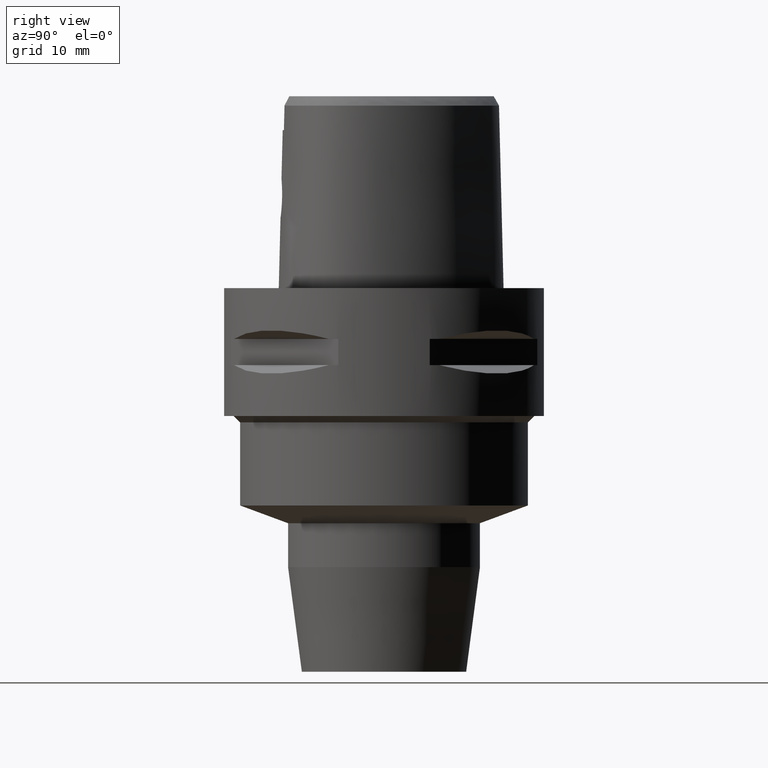
[diagram: clean part render]
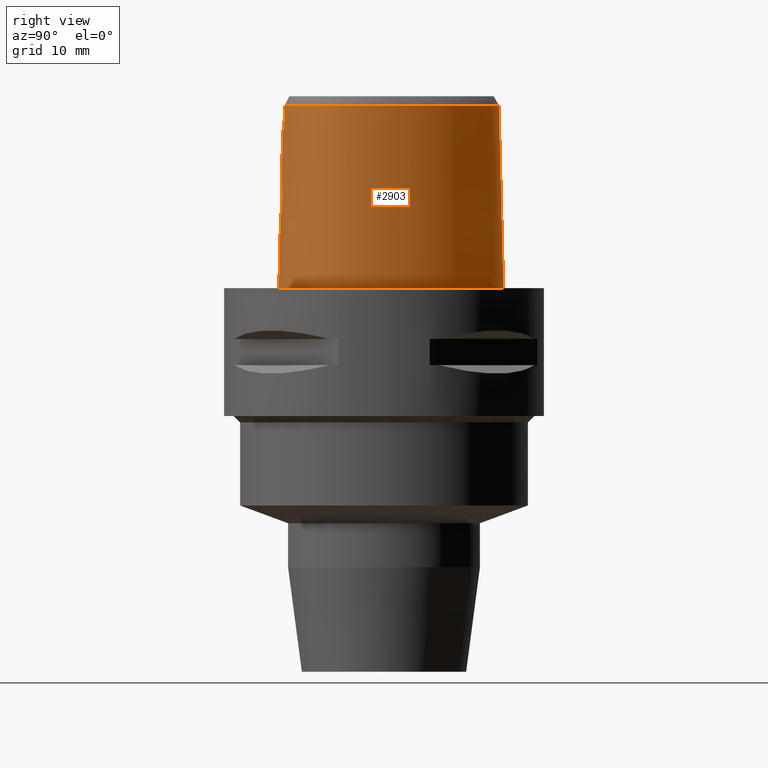
[diagram: same view with one face highlighted and labeled with its STEP entity id]
A machine part, right view. The second image highlights one B-rep face of the part: STEP entity #2903.
In plain terms, the highlighted face is a freeform B-spline surface patch.
Its self-contained STEP definition (entity closure, byte-faithful):
#130=CARTESIAN_POINT('',(3.168920890823E0,-1.555911073834E1,2.852071374673E1));
#140=CARTESIAN_POINT('',(-2.785047616194E-11,1.798202997910E1,
2.852071728569E1));
#141=CARTESIAN_POINT('',(2.938165127418E-1,1.798202997910E1,2.852071728569E1));
#142=CARTESIAN_POINT('',(8.804458130293E-1,1.795405330957E1,2.852060428472E1));
#143=CARTESIAN_POINT('',(1.831871468908E0,1.781472363942E1,2.852076493840E1));
#144=CARTESIAN_POINT('',(2.817086184386E0,1.757052614119E1,2.852071641668E1));
#145=CARTESIAN_POINT('',(3.847084431822E0,1.721075742549E1,2.852071665371E1));
#146=CARTESIAN_POINT('',(4.910783279314E0,1.672779719123E1,2.852072341258E1));
#147=CARTESIAN_POINT('',(5.986692590227E0,1.612449099150E1,2.852071572433E1));
#148=CARTESIAN_POINT('',(7.047068233906E0,1.541641131498E1,2.852072698246E1));
#149=CARTESIAN_POINT('',(8.110971385773E0,1.458914485717E1,2.852071912210E1));
#150=CARTESIAN_POINT('',(9.192999848597E0,1.362198297783E1,2.852071946810E1));
#151=CARTESIAN_POINT('',(1.034269201733E1,1.244304711909E1,2.852070842262E1));
#152=CARTESIAN_POINT('',(1.153704874450E1,1.102665121320E1,2.852071905381E1));
#153=CARTESIAN_POINT('',(1.271265117317E1,9.401004413258E0,2.852072762209E1));
#154=CARTESIAN_POINT('',(1.380154184962E1,7.628598012364E0,2.852068643211E1));
#155=CARTESIAN_POINT('',(1.474745196757E1,5.788295374651E0,2.852072741465E1));
#156=CARTESIAN_POINT('',(1.549983465724E1,4.010298593931E0,2.852070669004E1));
#157=CARTESIAN_POINT('',(1.606850953942E1,2.342579004074E0,2.852071993437E1));
#158=CARTESIAN_POINT('',(1.647577125132E1,8.018519579868E-1,2.852071506211E1));
#159=CARTESIAN_POINT('',(1.674682078325E1,-6.134299517335E-1,2.852071642236E1));
#160=CARTESIAN_POINT('',(1.690560867773E1,-1.937791433471E0,2.852072268517E1));
#161=CARTESIAN_POINT('',(1.696366750899E1,-3.211555099408E0,2.852071506623E1));
#162=CARTESIAN_POINT('',(1.692098381929E1,-4.431797834231E0,2.852071642479E1));
#163=CARTESIAN_POINT('',(1.678231117131E1,-5.571043062912E0,2.852072531871E1));
#164=CARTESIAN_POINT('',(1.655498942838E1,-6.624192014902E0,2.852071647227E1));
#165=CARTESIAN_POINT('',(1.625360589613E1,-7.573268431237E0,2.852071029196E1));
#166=CARTESIAN_POINT('',(1.588447048002E1,-8.436807986137E0,2.852072610166E1));
#167=CARTESIAN_POINT('',(1.544936115215E1,-9.227234670856E0,2.852073137009E1));
#168=CARTESIAN_POINT('',(1.493212083505E1,-9.978283257004E0,2.852069070674E1));
#169=CARTESIAN_POINT('',(1.431469721374E1,-1.071267780742E1,2.852072417142E1));
#170=CARTESIAN_POINT('',(1.357395694205E1,-1.144065842057E1,2.852072165713E1));
#171=CARTESIAN_POINT('',(1.270344234195E1,-1.214953424946E1,2.852072065183E1));
#172=CARTESIAN_POINT('',(1.171291712324E1,-1.281871451477E1,2.852071565398E1));
#173=CARTESIAN_POINT('',(1.062983432112E1,-1.342632327702E1,2.852072279452E1));
#174=CARTESIAN_POINT('',(9.464170682796E0,-1.396948522821E1,2.852070934219E1));
#175=CARTESIAN_POINT('',(8.175232924831E0,-1.446288339580E1,2.852072589632E1));
#176=CARTESIAN_POINT('',(6.723862984294E0,-1.490598933493E1,2.852072127642E1));
#177=CARTESIAN_POINT('',(5.084039457933E0,-1.528534650842E1,2.852070436948E1));
#178=CARTESIAN_POINT('',(3.829916567733E0,-1.548206888888E1,2.852069800888E1));
#179=CARTESIAN_POINT('',(3.168920890823E0,-1.555911073834E1,2.852071374673E1));
#255=DIRECTION('',(-2.653059685059E-8,-2.499217453618E-2,-9.996876468237E-1));
#256=VECTOR('',#255,7.652390309446E0);
#257=CARTESIAN_POINT('',(2.030224829794E-7,-1.583752876601E1,2.470000006103E1));
#258=LINE('',#257,#256);
#276=CARTESIAN_POINT('',(-3.366053273828E-12,-1.618126839359E1,1.095E1));
#281=DIRECTION('',(-2.164302279448E-12,-2.499051295342E-2,-9.996876883619E-1));
#282=VECTOR('',#281,1.095342088082E1);
#283=CARTESIAN_POINT('',(-3.366053273828E-12,-1.618126839359E1,1.095E1));
#284=LINE('',#283,#282);
#304=CARTESIAN_POINT('',(-2.707256705393E-11,-1.645499999999E1,
2.310744188586E-13));
#305=CARTESIAN_POINT('',(7.106745490005E-1,-1.645499999999E1,
2.310744188586E-13));
#306=CARTESIAN_POINT('',(2.108849377151E0,-1.640239215618E1,
-1.072420110093E-13));
#307=CARTESIAN_POINT('',(4.163955374330E0,-1.617110290377E1,
2.873541024464E-14));
#308=CARTESIAN_POINT('',(6.094825595025E0,-1.580321794913E1,0.E0));
#309=CARTESIAN_POINT('',(7.866809803478E0,-1.532157371117E1,0.E0));
#310=CARTESIAN_POINT('',(9.457879809202E0,-1.475049288481E1,0.E0));
#311=CARTESIAN_POINT('',(1.086307133585E1,-1.411286201631E1,0.E0));
#312=CARTESIAN_POINT('',(1.208934444980E1,-1.342716602504E1,0.E0));
#313=CARTESIAN_POINT('',(1.314952564660E1,-1.270754380507E1,0.E0));
#314=CARTESIAN_POINT('',(1.405964846811E1,-1.196341927097E1,0.E0));
#315=CARTESIAN_POINT('',(1.483613065611E1,-1.119991491936E1,0.E0));
#316=CARTESIAN_POINT('',(1.549213915763E1,-1.042096391331E1,0.E0));
#317=CARTESIAN_POINT('',(1.604221000987E1,-9.625112537160E0,0.E0));
#318=CARTESIAN_POINT('',(1.650384441939E1,-8.793710103116E0,0.E0));
#319=CARTESIAN_POINT('',(1.689442157410E1,-7.896073542808E0,0.E0));
#320=CARTESIAN_POINT('',(1.721775633091E1,-6.905953226681E0,0.E0));
#321=CARTESIAN_POINT('',(1.746368549610E1,-5.818261369788E0,0.E0));
#322=CARTESIAN_POINT('',(1.762248797755E1,-4.619569040424E0,0.E0));
#323=CARTESIAN_POINT('',(1.767989225185E1,-3.299576513800E0,0.E0));
#324=CARTESIAN_POINT('',(1.761875839637E1,-1.850361029848E0,0.E0));
#325=CARTESIAN_POINT('',(1.741981888408E1,-2.700165798431E-1,0.E0));
#326=CARTESIAN_POINT('',(1.706395646763E1,1.434111718093E0,0.E0));
#327=CARTESIAN_POINT('',(1.653557586704E1,3.241804499436E0,0.E0));
#328=CARTESIAN_POINT('',(1.582731304619E1,5.117014124479E0,0.E0));
#329=CARTESIAN_POINT('',(1.494415320255E1,7.009231619320E0,0.E0));
#330=CARTESIAN_POINT('',(1.390660366753E1,8.857557017488E0,0.E0));
#331=CARTESIAN_POINT('',(1.274251250087E1,1.061027079172E1,0.E0));
#332=CARTESIAN_POINT('',(1.149159176304E1,1.221706231543E1,0.E0));
#333=CARTESIAN_POINT('',(1.019644322201E1,1.364173374838E1,0.E0));
#334=CARTESIAN_POINT('',(8.894616507015E0,1.486700811646E1,0.E0));
#335=CARTESIAN_POINT('',(7.614274625545E0,1.589229727788E1,0.E0));
#336=CARTESIAN_POINT('',(6.374577437526E0,1.672772900624E1,0.E0));
#337=CARTESIAN_POINT('',(5.185514901079E0,1.739010710959E1,0.E0));
#338=CARTESIAN_POINT('',(4.050586912588E0,1.789812409033E1,0.E0));
#339=CARTESIAN_POINT('',(2.968832156381E0,1.826981173086E1,0.E0));
#340=CARTESIAN_POINT('',(1.935870611948E0,1.852101755434E1,2.858354148453E-14));
#341=CARTESIAN_POINT('',(9.475906863755E-1,1.866452152494E1,
-1.066752290805E-13));
#342=CARTESIAN_POINT('',(3.116628054698E-1,1.869499999997E1,
2.298531735316E-13));
#343=CARTESIAN_POINT('',(9.828595188037E-11,1.869499999997E1,
2.298531735316E-13));
#348=CARTESIAN_POINT('',(9.828595188037E-11,1.869499999997E1,
2.298531735316E-13));
#387=CARTESIAN_POINT('',(-2.707256705393E-11,-1.645499999999E1,
2.310744188586E-13));
#978=CARTESIAN_POINT('',(-3.366053273828E-12,-1.618126839359E1,1.095E1));
#979=CARTESIAN_POINT('',(2.650611778966E-1,-1.618126839359E1,1.095E1));
#980=CARTESIAN_POINT('',(7.954129563714E-1,-1.617185949275E1,1.101959481205E1));
#981=CARTESIAN_POINT('',(1.536758852697E0,-1.613275324600E1,1.132513757159E1));
#982=CARTESIAN_POINT('',(2.177015454746E0,-1.607704914738E1,1.181399912255E1));
#983=CARTESIAN_POINT('',(2.669517518808E0,-1.601712443736E1,1.245314694151E1));
#984=CARTESIAN_POINT('',(2.979666505276E0,-1.596597590633E1,1.320004797194E1));
#985=CARTESIAN_POINT('',(3.084890373829E0,-1.593407460593E1,1.399771829475E1));
#986=CARTESIAN_POINT('',(2.980766340980E0,-1.592574394750E1,1.479468793496E1));
#987=CARTESIAN_POINT('',(2.674395777380E0,-1.593915040611E1,1.553781091751E1));
#988=CARTESIAN_POINT('',(2.184663623043E0,-1.596698527989E1,1.617847611434E1));
#989=CARTESIAN_POINT('',(1.544591596133E0,-1.599850889832E1,1.667072701350E1));
#990=CARTESIAN_POINT('',(7.991410032870E-1,-1.602275278724E1,1.697984755041E1));
#991=CARTESIAN_POINT('',(2.663086456666E-1,-1.602877864024E1,1.705E1));
#992=CARTESIAN_POINT('',(0.E0,-1.602877864024E1,1.705E1));
#997=CARTESIAN_POINT('',(3.235096591086E0,-1.564751801258E1,2.470000006081E1));
#998=CARTESIAN_POINT('',(3.227943694998E0,-1.563768157846E1,2.512445138279E1));
#999=CARTESIAN_POINT('',(3.213330797133E0,-1.561778407881E1,2.597339479062E1));
#1000=CARTESIAN_POINT('',(3.191280187174E0,-1.558832433621E1,2.724696596470E1));
#1001=CARTESIAN_POINT('',(3.176473973167E0,-1.556891664015E1,2.809611775642E1));
#1002=CARTESIAN_POINT('',(3.168920890823E0,-1.555911073834E1,2.852071374673E1));
#1007=DIRECTION('',(4.421243438762E-12,2.499051285762E-2,-9.996876883643E-1));
#1008=VECTOR('',#1007,2.852962742029E1);
#1009=CARTESIAN_POINT('',(-2.785047616194E-11,1.798202997910E1,
2.852071728569E1));
#1010=LINE('',#1009,#1008);
#1014=CARTESIAN_POINT('',(3.235096591086E0,-1.564751801258E1,2.470000006081E1));
#1015=CARTESIAN_POINT('',(2.877122203687E0,-1.568999561460E1,2.470000006081E1));
#1016=CARTESIAN_POINT('',(2.160152484223E0,-1.576019557339E1,2.469999997976E1));
#1017=CARTESIAN_POINT('',(1.080736665327E0,-1.582371264759E1,2.469999997963E1));
#1018=CARTESIAN_POINT('',(3.604655401264E-1,-1.583752876601E1,
2.470000006103E1));
#1019=CARTESIAN_POINT('',(2.030224829794E-7,-1.583752876601E1,
2.470000006103E1));
#1024=CARTESIAN_POINT('',(2.030224829794E-7,-1.583752876601E1,
2.470000006103E1));
#1503=VERTEX_POINT('',#130);
#1504=VERTEX_POINT('',#997);
#1508=CARTESIAN_POINT('',(-2.785047616194E-11,1.798202997910E1,
2.852071728569E1));
#1509=VERTEX_POINT('',#1508);
#1510=VERTEX_POINT('',#348);
#1511=VERTEX_POINT('',#387);
#1512=VERTEX_POINT('',#1024);
#1513=CARTESIAN_POINT('',(0.E0,-1.602877864024E1,1.705E1));
#1514=VERTEX_POINT('',#1513);
#1515=VERTEX_POINT('',#276);
#2795=CARTESIAN_POINT('',(-1.089046662709E0,-1.644835921937E1,
-5.704147062695E-1));
#2796=CARTESIAN_POINT('',(-1.079551361421E0,-1.620136643697E1,
9.316773535736E0));
#2797=CARTESIAN_POINT('',(-1.070056060133E0,-1.595437365457E1,
1.920396177774E1));
#2798=CARTESIAN_POINT('',(-1.060560758845E0,-1.570738087217E1,
2.909115001975E1));
#2799=CARTESIAN_POINT('',(-7.264497208435E-1,-1.646229666017E1,
-5.704147062695E-1));
#2800=CARTESIAN_POINT('',(-7.201291707900E-1,-1.621519147454E1,
9.316773535736E0));
#2801=CARTESIAN_POINT('',(-7.138086207366E-1,-1.596808628891E1,
1.920396177774E1));
#2802=CARTESIAN_POINT('',(-7.074880706831E-1,-1.572098110328E1,
2.909115001975E1));
#2803=CARTESIAN_POINT('',(1.321318946929E0,-1.650155084639E1,
-5.704147062695E-1));
#2804=CARTESIAN_POINT('',(1.309813751629E0,-1.625411916713E1,9.316773535736E0));
#2805=CARTESIAN_POINT('',(1.298308556329E0,-1.600668748788E1,1.920396177774E1));
#2806=CARTESIAN_POINT('',(1.286803361029E0,-1.575925580862E1,2.909115001975E1));
#2807=CARTESIAN_POINT('',(5.053620743902E0,-1.616974068505E1,
-5.704147062695E-1));
#2808=CARTESIAN_POINT('',(5.009809420878E0,-1.592506881089E1,9.316773535736E0));
#2809=CARTESIAN_POINT('',(4.965998097854E0,-1.568039693673E1,1.920396177774E1));
#2810=CARTESIAN_POINT('',(4.922186774830E0,-1.543572506257E1,2.909115001975E1));
#2811=CARTESIAN_POINT('',(8.951632341010E0,-1.505250171791E1,
-5.704147062695E-1));
#2812=CARTESIAN_POINT('',(8.866858737382E0,-1.481887819077E1,9.316773535736E0));
#2813=CARTESIAN_POINT('',(8.782085133753E0,-1.458525466362E1,1.920396177774E1));
#2814=CARTESIAN_POINT('',(8.697311530125E0,-1.435163113647E1,2.909115001975E1));
#2815=CARTESIAN_POINT('',(1.169401646433E1,-1.371637917823E1,
-5.704147062695E-1));
#2816=CARTESIAN_POINT('',(1.157144729048E1,-1.350085883892E1,9.316773535736E0));
#2817=CARTESIAN_POINT('',(1.144887811662E1,-1.328533849962E1,1.920396177774E1));
#2818=CARTESIAN_POINT('',(1.132630894276E1,-1.306981816032E1,2.909115001975E1));
#2819=CARTESIAN_POINT('',(1.351574691284E1,-1.249390941299E1,
-5.704147062695E-1));
#2820=CARTESIAN_POINT('',(1.336241662681E1,-1.229868531708E1,9.316773535736E0));
#2821=CARTESIAN_POINT('',(1.320908634079E1,-1.210346122117E1,1.920396177774E1));
#2822=CARTESIAN_POINT('',(1.305575605477E1,-1.190823712526E1,2.909115001975E1));
#2823=CARTESIAN_POINT('',(1.479871907730E1,-1.129217324079E1,
-5.704147062695E-1));
#2824=CARTESIAN_POINT('',(1.461870767333E1,-1.112154149429E1,9.316773535736E0));
#2825=CARTESIAN_POINT('',(1.443869626936E1,-1.095090974780E1,1.920396177774E1));
#2826=CARTESIAN_POINT('',(1.425868486540E1,-1.078027800131E1,2.909115001975E1));
#2827=CARTESIAN_POINT('',(1.566039569380E1,-1.022138777444E1,
-5.704147062695E-1));
#2828=CARTESIAN_POINT('',(1.546013587230E1,-1.007579655925E1,9.316773535736E0));
#2829=CARTESIAN_POINT('',(1.525987605079E1,-9.930205344064E0,1.920396177774E1));
#2830=CARTESIAN_POINT('',(1.505961622929E1,-9.784614128878E0,2.909115001975E1));
#2831=CARTESIAN_POINT('',(1.621839714811E1,-9.363695959303E0,
-5.704147062695E-1));
#2832=CARTESIAN_POINT('',(1.600394172131E1,-9.239880060555E0,9.316773535736E0));
#2833=CARTESIAN_POINT('',(1.578948629452E1,-9.116064161807E0,1.920396177774E1));
#2834=CARTESIAN_POINT('',(1.557503086773E1,-8.992248263059E0,2.909115001975E1));
#2835=CARTESIAN_POINT('',(1.668217932143E1,-8.451606616812E0,
-5.704147062695E-1));
#2836=CARTESIAN_POINT('',(1.645596372090E1,-8.350972133727E0,9.316773535736E0));
#2837=CARTESIAN_POINT('',(1.622974812038E1,-8.250337650642E0,1.920396177774E1));
#2838=CARTESIAN_POINT('',(1.600353251985E1,-8.149703167557E0,2.909115001975E1));
#2839=CARTESIAN_POINT('',(1.717866842950E1,-7.169980044669E0,
-5.704147062695E-1));
#2840=CARTESIAN_POINT('',(1.694089129346E1,-7.099401457903E0,9.316773535736E0));
#2841=CARTESIAN_POINT('',(1.670311415741E1,-7.028822871136E0,1.920396177774E1));
#2842=CARTESIAN_POINT('',(1.646533702137E1,-6.958244284369E0,2.909115001975E1));
#2843=CARTESIAN_POINT('',(1.757791639739E1,-5.458025465938E0,
-5.704147062695E-1));
#2844=CARTESIAN_POINT('',(1.733218228434E1,-5.422849681346E0,9.316773535736E0));
#2845=CARTESIAN_POINT('',(1.708644817128E1,-5.387673896754E0,1.920396177774E1));
#2846=CARTESIAN_POINT('',(1.684071405822E1,-5.352498112162E0,2.909115001975E1));
#2847=CARTESIAN_POINT('',(1.772574106035E1,-3.269125760293E0,
-5.704147062695E-1));
#2848=CARTESIAN_POINT('',(1.747781017836E1,-3.270737581886E0,9.316773535736E0));
#2849=CARTESIAN_POINT('',(1.722987929637E1,-3.272349403480E0,1.920396177774E1));
#2850=CARTESIAN_POINT('',(1.698194841438E1,-3.273961225073E0,2.909115001975E1));
#2851=CARTESIAN_POINT('',(1.751166498566E1,-2.260900528317E-1,
-5.704147062695E-1));
#2852=CARTESIAN_POINT('',(1.726695536758E1,-2.694874704149E-1,
9.316773535736E0));
#2853=CARTESIAN_POINT('',(1.702224574950E1,-3.128848879981E-1,
1.920396177774E1));
#2854=CARTESIAN_POINT('',(1.677753613143E1,-3.562823055813E-1,
2.909115001975E1));
#2855=CARTESIAN_POINT('',(1.653021708594E1,3.708305584560E0,
-5.704147062695E-1));
#2856=CARTESIAN_POINT('',(1.629641055826E1,3.623925452185E0,9.316773535736E0));
#2857=CARTESIAN_POINT('',(1.606260403057E1,3.539545319810E0,1.920396177774E1));
#2858=CARTESIAN_POINT('',(1.582879750288E1,3.455165187434E0,2.909115001975E1));
#2859=CARTESIAN_POINT('',(1.439249255241E1,8.309508948815E0,
-5.704147062695E-1));
#2860=CARTESIAN_POINT('',(1.417736239030E1,8.185312169349E0,9.316773535736E0));
#2861=CARTESIAN_POINT('',(1.396223222820E1,8.061115389883E0,1.920396177774E1));
#2862=CARTESIAN_POINT('',(1.374710206609E1,7.936918610416E0,2.909115001975E1));
#2863=CARTESIAN_POINT('',(1.147659488522E1,1.246143684864E1,
-5.704147062695E-1));
#2864=CARTESIAN_POINT('',(1.128662493213E1,1.230111480562E1,9.316773535736E0));
#2865=CARTESIAN_POINT('',(1.109665497905E1,1.214079276260E1,1.920396177774E1));
#2866=CARTESIAN_POINT('',(1.090668502596E1,1.198047071957E1,2.909115001975E1));
#2867=CARTESIAN_POINT('',(7.976721801762E0,1.584201698627E1,
-5.704147062695E-1));
#2868=CARTESIAN_POINT('',(7.822764751122E0,1.564591005748E1,9.316773535736E0));
#2869=CARTESIAN_POINT('',(7.668807700483E0,1.544980312868E1,1.920396177774E1));
#2870=CARTESIAN_POINT('',(7.514850649844E0,1.525369619989E1,2.909115001975E1));
#2871=CARTESIAN_POINT('',(4.735056264731E0,1.774784407952E1,
-5.704147062695E-1));
#2872=CARTESIAN_POINT('',(4.628819260868E0,1.752182795108E1,9.316773535736E0));
#2873=CARTESIAN_POINT('',(4.522582257006E0,1.729581182264E1,1.920396177774E1));
#2874=CARTESIAN_POINT('',(4.416345253143E0,1.706979569420E1,2.909115001975E1));
#2875=CARTESIAN_POINT('',(2.043508293105E0,1.856419797009E1,
-5.704147062695E-1));
#2876=CARTESIAN_POINT('',(1.992618745514E0,1.832080815529E1,9.316773535736E0));
#2877=CARTESIAN_POINT('',(1.941729197923E0,1.807741834048E1,1.920396177774E1));
#2878=CARTESIAN_POINT('',(1.890839650332E0,1.783402852568E1,2.909115001975E1));
#2879=CARTESIAN_POINT('',(4.897519513855E-1,1.872964555635E1,
-5.704147062695E-1));
#2880=CARTESIAN_POINT('',(4.768940258314E-1,1.848195218190E1,9.316773535736E0));
#2881=CARTESIAN_POINT('',(4.640361002773E-1,1.823425880746E1,1.920396177774E1));
#2882=CARTESIAN_POINT('',(4.511781747233E-1,1.798656543301E1,2.909115001975E1));
#2883=CARTESIAN_POINT('',(-3.829342213910E-1,1.870352949275E1,
-5.704147062695E-1));
#2884=CARTESIAN_POINT('',(-3.730031645107E-1,1.845651543941E1,
9.316773535736E0));
#2885=CARTESIAN_POINT('',(-3.630721076303E-1,1.820950138607E1,
1.920396177774E1));
#2886=CARTESIAN_POINT('',(-3.531410507500E-1,1.796248733273E1,
2.909115001975E1));
#2887=CARTESIAN_POINT('',(-5.743166383271E-1,1.869191973852E1,
-5.704147062695E-1));
#2888=CARTESIAN_POINT('',(-5.593289284234E-1,1.844521839009E1,
9.316773535736E0));
#2889=CARTESIAN_POINT('',(-5.443412185197E-1,1.819851704167E1,
1.920396177774E1));
#2890=CARTESIAN_POINT('',(-5.293535086159E-1,1.795181569325E1,
2.909115001975E1));
#2891=B_SPLINE_SURFACE_WITH_KNOTS('',3,3,((#2795,#2796,#2797,#2798),(#2799,
#2800,#2801,#2802),(#2803,#2804,#2805,#2806),(#2807,#2808,#2809,#2810),(#2811,
#2812,#2813,#2814),(#2815,#2816,#2817,#2818),(#2819,#2820,#2821,#2822),(#2823,
#2824,#2825,#2826),(#2827,#2828,#2829,#2830),(#2831,#2832,#2833,#2834),(#2835,
#2836,#2837,#2838),(#2839,#2840,#2841,#2842),(#2843,#2844,#2845,#2846),(#2847,
#2848,#2849,#2850),(#2851,#2852,#2853,#2854),(#2855,#2856,#2857,#2858),(#2859,
#2860,#2861,#2862),(#2863,#2864,#2865,#2866),(#2867,#2868,#2869,#2870),(#2871,
#2872,#2873,#2874),(#2875,#2876,#2877,#2878),(#2879,#2880,#2881,#2882),(#2883,
#2884,#2885,#2886),(#2887,#2888,#2889,#2890)),.UNSPECIFIED.,.F.,.F.,.F.,(4,1,1,
1,1,1,1,1,1,1,1,1,1,1,1,1,1,1,1,1,1,4),(4,4),(-1.796851319154E-2,0.E0,
8.333333333365E-2,1.666666666669E-1,2.083333333334E-1,2.500000000001E-1,
2.916666666667E-1,3.125E-1,3.333333333332E-1,3.541666666666E-1,
3.749999999999E-1,4.166666666665E-1,4.583333333331E-1,4.999999999997E-1,
5.833333333329E-1,6.666666666661E-1,7.499999999993E-1,8.333333333325E-1,
9.166666666658E-1,9.583333333323E-1,1.E0,1.011711214085E0),(8.102395664122E-10,
9.999999586777E-1),.UNSPECIFIED.);
#2892=ORIENTED_EDGE('',*,*,#2288,.F.);
#2893=ORIENTED_EDGE('',*,*,#2272,.F.);
#2894=ORIENTED_EDGE('',*,*,#2787,.T.);
#2895=ORIENTED_EDGE('',*,*,#2268,.F.);
#2897=ORIENTED_EDGE('',*,*,#2896,.F.);
#2898=ORIENTED_EDGE('',*,*,#1685,.T.);
#2899=ORIENTED_EDGE('',*,*,#1925,.F.);
#2900=ORIENTED_EDGE('',*,*,#2262,.T.);
#2901=EDGE_LOOP('',(#2892,#2893,#2894,#2895,#2897,#2898,#2899,#2900));
#2902=FACE_OUTER_BOUND('',#2901,.F.);
#180=B_SPLINE_CURVE_WITH_KNOTS('',3,(#140,#141,#142,#143,#144,#145,#146,#147,
#148,#149,#150,#151,#152,#153,#154,#155,#156,#157,#158,#159,#160,#161,#162,#163,
#164,#165,#166,#167,#168,#169,#170,#171,#172,#173,#174,#175,#176,#177,#178,
#179),.UNSPECIFIED.,.F.,.F.,(4,1,1,1,1,1,1,1,1,1,1,1,1,1,1,1,1,1,1,1,1,1,1,1,1,
1,1,1,1,1,1,1,1,1,1,1,1,4),(0.E0,2.702702702703E-2,5.405405405405E-2,
8.108108108108E-2,1.081081081081E-1,1.351351351351E-1,1.621621621622E-1,
1.891891891892E-1,2.162162162162E-1,2.432432432432E-1,2.702702702703E-1,
2.972972972973E-1,3.243243243243E-1,3.513513513514E-1,3.783783783784E-1,
4.054054054054E-1,4.324324324324E-1,4.594594594595E-1,4.864864864865E-1,
5.135135135135E-1,5.405405405405E-1,5.675675675676E-1,5.945945945946E-1,
6.216216216216E-1,6.486486486486E-1,6.756756756757E-1,7.027027027027E-1,
7.297297297297E-1,7.567567567568E-1,7.837837837838E-1,8.108108108108E-1,
8.378378378378E-1,8.648648648649E-1,8.918918918919E-1,9.189189189189E-1,
9.459459459459E-1,9.729729729730E-1,1.E0),.UNSPECIFIED.);
#344=B_SPLINE_CURVE_WITH_KNOTS('',3,(#304,#305,#306,#307,#308,#309,#310,#311,
#312,#313,#314,#315,#316,#317,#318,#319,#320,#321,#322,#323,#324,#325,#326,#327,
#328,#329,#330,#331,#332,#333,#334,#335,#336,#337,#338,#339,#340,#341,#342,
#343),.UNSPECIFIED.,.F.,.F.,(4,1,1,1,1,1,1,1,1,1,1,1,1,1,1,1,1,1,1,1,1,1,1,1,1,
1,1,1,1,1,1,1,1,1,1,1,1,4),(0.E0,2.702702702703E-2,5.405405405405E-2,
8.108108108108E-2,1.081081081081E-1,1.351351351351E-1,1.621621621622E-1,
1.891891891892E-1,2.162162162162E-1,2.432432432432E-1,2.702702702703E-1,
2.972972972973E-1,3.243243243243E-1,3.513513513514E-1,3.783783783784E-1,
4.054054054054E-1,4.324324324324E-1,4.594594594595E-1,4.864864864865E-1,
5.135135135135E-1,5.405405405405E-1,5.675675675676E-1,5.945945945946E-1,
6.216216216216E-1,6.486486486486E-1,6.756756756757E-1,7.027027027027E-1,
7.297297297297E-1,7.567567567568E-1,7.837837837838E-1,8.108108108108E-1,
8.378378378378E-1,8.648648648649E-1,8.918918918919E-1,9.189189189189E-1,
9.459459459459E-1,9.729729729730E-1,1.E0),.UNSPECIFIED.);
#993=B_SPLINE_CURVE_WITH_KNOTS('',3,(#978,#979,#980,#981,#982,#983,#984,#985,
#986,#987,#988,#989,#990,#991,#992),.UNSPECIFIED.,.F.,.F.,(4,1,1,1,1,1,1,1,1,1,
1,1,4),(0.E0,8.333333333333E-2,1.666666666667E-1,2.5E-1,3.333333333333E-1,
4.166666666667E-1,5.E-1,5.833333333333E-1,6.666666666667E-1,7.5E-1,
8.333333333333E-1,9.166666666667E-1,1.E0),.UNSPECIFIED.);
#1003=B_SPLINE_CURVE_WITH_KNOTS('',3,(#997,#998,#999,#1000,#1001,#1002),
.UNSPECIFIED.,.F.,.F.,(4,1,1,4),(0.E0,3.333333333333E-1,6.666666666667E-1,1.E0),
.UNSPECIFIED.);
#1020=B_SPLINE_CURVE_WITH_KNOTS('',3,(#1014,#1015,#1016,#1017,#1018,#1019),
.UNSPECIFIED.,.F.,.F.,(4,1,1,4),(0.E0,3.333333333333E-1,6.666666666667E-1,1.E0),
.UNSPECIFIED.);
#1685=EDGE_CURVE('',#1504,#1503,#1003,.T.);
#1925=EDGE_CURVE('',#1509,#1503,#180,.T.);
#2262=EDGE_CURVE('',#1509,#1510,#1010,.T.);
#2268=EDGE_CURVE('',#1512,#1514,#258,.T.);
#2272=EDGE_CURVE('',#1515,#1511,#284,.T.);
#2288=EDGE_CURVE('',#1511,#1510,#344,.T.);
#2787=EDGE_CURVE('',#1515,#1514,#993,.T.);
#2896=EDGE_CURVE('',#1504,#1512,#1020,.T.);
#2903=ADVANCED_FACE('',(#2902),#2891,.T.);